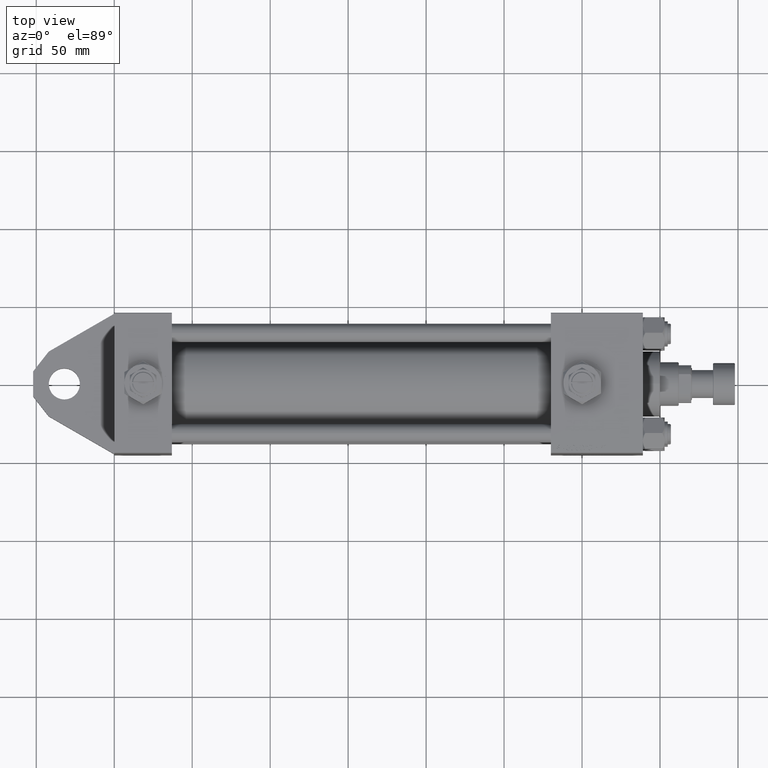
[diagram: clean part render]
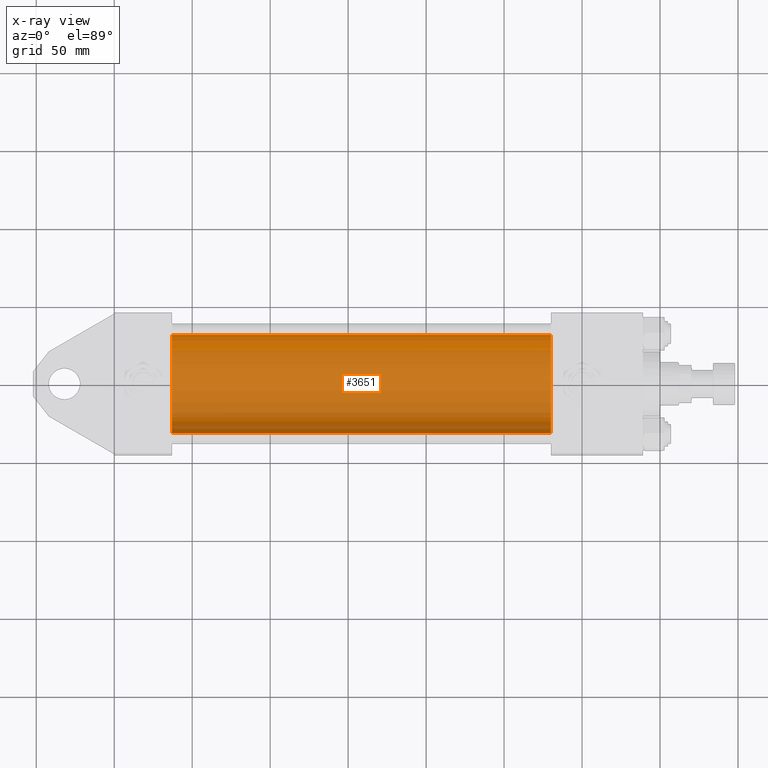
[diagram: x-ray — body ghosted, one internal face saturated and labeled with its STEP entity id]
A machine part, top view, then the same camera in x-ray: the body is ghosted and one INTERNAL B-rep face — a face not visible from any outside direction — is saturated and labeled: STEP entity #3651.
In plain terms, the highlighted cylindrical surface (partial cylindrical patch) has radius 31.5 mm, axis along (-1, -0, 0).
Its self-contained STEP definition (entity closure, byte-faithful):
#1627 = EDGE_CURVE ( 'NONE', #30226, #39557, #46181, .T. ) ;
#3576 = CARTESIAN_POINT ( 'NONE',  ( 279.9999999999999432, 1.255552203348951850E-15, -31.50000000000000000 ) ) ;
#3589 = VECTOR ( 'NONE', #26763, 1000.000000000000000 ) ;
#3651 = ADVANCED_FACE ( 'NONE', ( #19969 ), #28349, .F. ) ;
#3816 = VERTEX_POINT ( 'NONE', #12056 ) ;
#5230 = CARTESIAN_POINT ( 'NONE',  ( 279.9999999999999432, -2.602085213965210642E-15, 0.000000000000000000 ) ) ;
#5647 = CARTESIAN_POINT ( 'NONE',  ( 279.9999999999999432, -2.602085213965210642E-15, 31.50000000000000000 ) ) ;
#6007 = EDGE_CURVE ( 'NONE', #3816, #39557, #48390, .T. ) ;
#6343 = CARTESIAN_POINT ( 'NONE',  ( 279.9999999999999432, -2.602085213965210642E-15, 0.000000000000000000 ) ) ;
#9406 = DIRECTION ( 'NONE',  ( -1.000000000000000000, -0.000000000000000000, -0.000000000000000000 ) ) ;
#9652 = DIRECTION ( 'NONE',  ( 0.000000000000000000, 0.000000000000000000, 1.000000000000000000 ) ) ;
#10441 = EDGE_CURVE ( 'NONE', #30781, #3816, #32918, .T. ) ;
#11770 = CARTESIAN_POINT ( 'NONE',  ( 279.9999999999999432, 1.255552203348951850E-15, -31.50000000000000000 ) ) ;
#12056 = CARTESIAN_POINT ( 'NONE',  ( 37.00000000000000000, -2.602085213965210642E-15, 31.50000000000000000 ) ) ;
#12217 = ORIENTED_EDGE ( 'NONE', *, *, #6007, .F. ) ;
#14853 = CARTESIAN_POINT ( 'NONE',  ( 37.00000000000000000, -2.602085213965210642E-15, 0.000000000000000000 ) ) ;
#15642 = CARTESIAN_POINT ( 'NONE',  ( 37.00000000000000000, 1.255552203348951850E-15, -31.50000000000000000 ) ) ;
#16416 = CARTESIAN_POINT ( 'NONE',  ( 279.9999999999999432, -2.602085213965210642E-15, 31.50000000000000000 ) ) ;
#18621 = ORIENTED_EDGE ( 'NONE', *, *, #34311, .T. ) ;
#19969 = FACE_OUTER_BOUND ( 'NONE', #25827, .T. ) ;
#21840 = VECTOR ( 'NONE', #40057, 1000.000000000000000 ) ;
#25827 = EDGE_LOOP ( 'NONE', ( #18621, #31608, #12217, #38385 ) ) ;
#26763 = DIRECTION ( 'NONE',  ( -1.000000000000000000, -0.000000000000000000, -0.000000000000000000 ) ) ;
#28349 = CYLINDRICAL_SURFACE ( 'NONE', #37468, 31.50000000000000000 ) ;
#30226 = VERTEX_POINT ( 'NONE', #3576 ) ;
#30781 = VERTEX_POINT ( 'NONE', #16416 ) ;
#31608 = ORIENTED_EDGE ( 'NONE', *, *, #1627, .T. ) ;
#32918 = LINE ( 'NONE', #5647, #21840 ) ;
#33055 = DIRECTION ( 'NONE',  ( 0.000000000000000000, 0.000000000000000000, -1.000000000000000000 ) ) ;
#34311 = EDGE_CURVE ( 'NONE', #30781, #30226, #44355, .T. ) ;
#34374 = AXIS2_PLACEMENT_3D ( 'NONE', #14853, #47557, #33055 ) ;
#35871 = DIRECTION ( 'NONE',  ( 0.000000000000000000, 0.000000000000000000, -1.000000000000000000 ) ) ;
#37468 = AXIS2_PLACEMENT_3D ( 'NONE', #5230, #9406, #9652 ) ;
#38385 = ORIENTED_EDGE ( 'NONE', *, *, #10441, .F. ) ;
#38904 = AXIS2_PLACEMENT_3D ( 'NONE', #6343, #40276, #35871 ) ;
#39557 = VERTEX_POINT ( 'NONE', #15642 ) ;
#40057 = DIRECTION ( 'NONE',  ( -1.000000000000000000, -0.000000000000000000, -0.000000000000000000 ) ) ;
#40276 = DIRECTION ( 'NONE',  ( 1.000000000000000000, 0.000000000000000000, 0.000000000000000000 ) ) ;
#44355 = CIRCLE ( 'NONE', #38904, 31.50000000000000000 ) ;
#46181 = LINE ( 'NONE', #11770, #3589 ) ;
#47557 = DIRECTION ( 'NONE',  ( 1.000000000000000000, 0.000000000000000000, 0.000000000000000000 ) ) ;
#48390 = CIRCLE ( 'NONE', #34374, 31.50000000000000000 ) ;